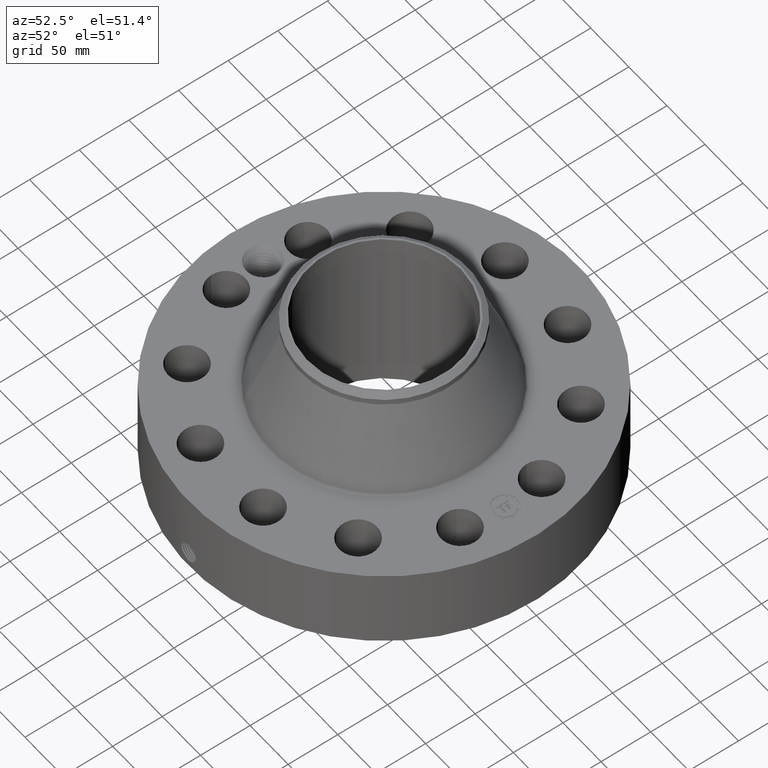
[diagram: clean part render]
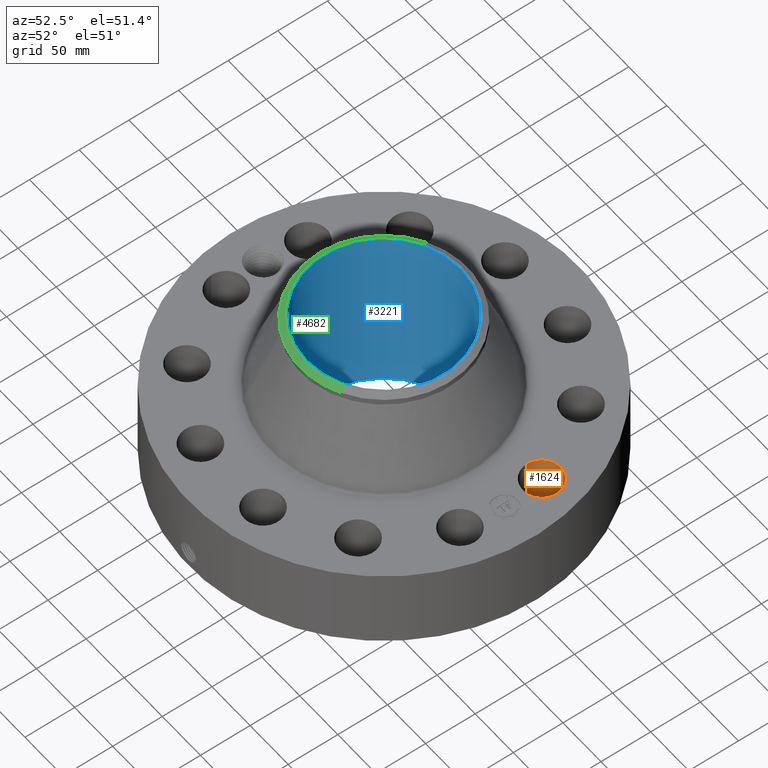
[diagram: same view with three faces highlighted in distinct colors, each labeled with its STEP entity id]
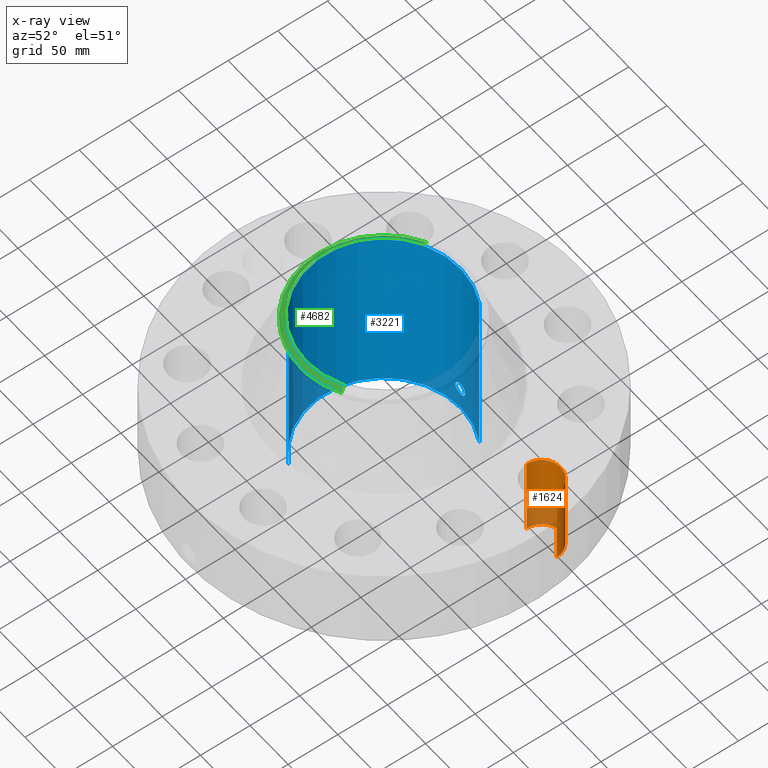
[diagram: x-ray of the same camera — body ghosted, the three highlighted faces saturated]
A machine part, auxiliary view with three faces highlighted in distinct colors.
The next image is the same camera in x-ray (body ghosted, the three faces saturated) — at least one of them is partly hidden behind the body in this view.
Their STEP definitions:

[orange] entity #1624 — the highlighted cylindrical surface (edge-blend (fillet) strip) has radius 19.05 mm, axis along (0, 0, -1).
#451=AXIS2_PLACEMENT_3D('Circle Axis2P3D',#449,#450,$) ;
#849=AXIS2_PLACEMENT_3D('Circle Axis2P3D',#847,#848,$) ;
#1606=AXIS2_PLACEMENT_3D('Cylinder Axis2P3D',#1603,#1604,#1605) ;
#449=CARTESIAN_POINT('Axis2P3D Location',(6.03703641433,1.6176190319,0.250000000001)) ;
#453=CARTESIAN_POINT('Vertex',(5.28724524296,1.59992159293,0.250000000001)) ;
#455=CARTESIAN_POINT('Vertex',(6.7868275857,1.63531647087,0.250000000001)) ;
#842=CARTESIAN_POINT('Vertex',(6.7868275857,1.63531647087,3.50000000001)) ;
#844=CARTESIAN_POINT('Vertex',(5.28724524296,1.59992159293,3.50000000001)) ;
#847=CARTESIAN_POINT('Axis2P3D Location',(6.03703641433,1.6176190319,3.50000000001)) ;
#1603=CARTESIAN_POINT('Axis2P3D Location',(6.03703641433,1.6176190319,3.49606299214)) ;
#1608=CARTESIAN_POINT('Line Origine',(5.28724524296,1.59992159293,1.87500000001)) ;
#1613=CARTESIAN_POINT('Line Origine',(6.7868275857,1.63531647087,1.87500000001)) ;
#450=DIRECTION('Axis2P3D Direction',(0.,0.,-0.0393700787402)) ;
#848=DIRECTION('Axis2P3D Direction',(0.,0.,-0.0393700787402)) ;
#1604=DIRECTION('Axis2P3D Direction',(0.,0.,-0.0393700787402)) ;
#1605=DIRECTION('Axis2P3D XDirection',(0.039359116607,0.000928999420902,0.)) ;
#1609=DIRECTION('Vector Direction',(0.,0.,-0.0393700787402)) ;
#1614=DIRECTION('Vector Direction',(0.,0.,-0.0393700787402)) ;
#1610=VECTOR('Line Direction',#1609,0.0393700787402) ;
#1615=VECTOR('Line Direction',#1614,0.0393700787402) ;
#1619=ORIENTED_EDGE('',*,*,#1612,.F.) ;
#1620=ORIENTED_EDGE('',*,*,#457,.T.) ;
#1621=ORIENTED_EDGE('',*,*,#1617,.T.) ;
#1622=ORIENTED_EDGE('',*,*,#851,.F.) ;
#1624=ADVANCED_FACE('PartBody',(#1623),#1607,.F.) ;
#452=CIRCLE('generated circle',#451,0.750000000003) ;
#850=CIRCLE('generated circle',#849,0.750000000003) ;
#1607=CYLINDRICAL_SURFACE('generated cylinder',#1606,0.750000000003) ;
#457=EDGE_CURVE('',#454,#456,#452,.T.) ;
#851=EDGE_CURVE('',#845,#843,#850,.T.) ;
#1612=EDGE_CURVE('',#454,#845,#1611,.F.) ;
#1617=EDGE_CURVE('',#456,#843,#1616,.F.) ;
#1618=EDGE_LOOP('',(#1619,#1620,#1621,#1622)) ;
#1623=FACE_OUTER_BOUND('',#1618,.T.) ;
#1611=LINE('Line',#1608,#1610) ;
#1616=LINE('Line',#1613,#1615) ;
#454=VERTEX_POINT('',#453) ;
#456=VERTEX_POINT('',#455) ;
#843=VERTEX_POINT('',#842) ;
#845=VERTEX_POINT('',#844) ;

[blue] entity #3221 — the highlighted cylindrical surface (partial cylindrical patch) has radius 77.0255 mm, axis along (0, 0, -1).
#2364=AXIS2_PLACEMENT_3D('Circle Axis2P3D',#2362,#2363,$) ;
#3098=AXIS2_PLACEMENT_3D('Cylinder Axis2P3D',#3095,#3096,#3097) ;
#3170=AXIS2_PLACEMENT_3D('Circle Axis2P3D',#3168,#3169,$) ;
#2357=CARTESIAN_POINT('Vertex',(1.45385794582,2.66126911894,-5.59482469102E-015)) ;
#2359=CARTESIAN_POINT('Vertex',(-1.45385794582,-2.66126911894,-5.59482469102E-015)) ;
#2362=CARTESIAN_POINT('Axis2P3D Location',(0.,0.,0.)) ;
#3095=CARTESIAN_POINT('Axis2P3D Location',(0.,0.,3.50000000001)) ;
#3104=CARTESIAN_POINT('Vertex',(1.45385794582,2.66126911894,7.00000000003)) ;
#3106=CARTESIAN_POINT('Vertex',(-1.45385794582,-2.66126911894,7.00000000003)) ;
#3109=CARTESIAN_POINT('Line Origine',(1.45385794582,2.66126911894,3.50000000001)) ;
#3114=CARTESIAN_POINT('Line Origine',(-1.45385794582,-2.66126911894,3.50000000001)) ;
#3168=CARTESIAN_POINT('Axis2P3D Location',(0.,0.,7.00000000003)) ;
#3180=CARTESIAN_POINT('Control Point',(0.219395640473,3.02455315758,1.05985638466)) ;
#3181=CARTESIAN_POINT('Control Point',(0.206922263263,3.0254579539,1.08268874849)) ;
#3182=CARTESIAN_POINT('Control Point',(0.19148121978,3.02651338018,1.10389387822)) ;
#3183=CARTESIAN_POINT('Control Point',(0.173352909266,3.02763770348,1.12296159325)) ;
#3184=CARTESIAN_POINT('Control Point',(0.112190548393,3.03088722865,1.17241106648)) ;
#3185=CARTESIAN_POINT('Control Point',(0.0350754877691,3.03299839928,1.19595142333)) ;
#3186=CARTESIAN_POINT('Control Point',(-0.0194612464801,3.0331580368,1.19761225249)) ;
#3187=CARTESIAN_POINT('Control Point',(-0.124017328615,3.03084011998,1.17252080762)) ;
#3188=CARTESIAN_POINT('Control Point',(-0.203044538232,3.02603181156,1.09972456466)) ;
#3189=CARTESIAN_POINT('Control Point',(-0.232052740202,3.02365897928,1.05357545794)) ;
#3190=CARTESIAN_POINT('Control Point',(-0.255813742485,3.02169783614,0.975393758157)) ;
#3191=CARTESIAN_POINT('Control Point',(-0.248329979715,3.02231494673,0.895940839296)) ;
#3192=CARTESIAN_POINT('Control Point',(-0.24209507762,3.02283692028,0.869302616476)) ;
#3193=CARTESIAN_POINT('Control Point',(-0.232344480066,3.02361387207,0.843846307238)) ;
#3194=CARTESIAN_POINT('Control Point',(-0.219395640473,3.02455315758,0.820143615352)) ;
#3195=CARTESIAN_POINT('Vertex',(0.219395640473,3.02455315758,1.05985638466)) ;
#3197=CARTESIAN_POINT('Vertex',(-0.219395640473,3.02455315758,0.820143615352)) ;
#3201=CARTESIAN_POINT('Control Point',(-0.219395640473,3.02455315758,0.820143615352)) ;
#3202=CARTESIAN_POINT('Control Point',(-0.206922263263,3.0254579539,0.797311251521)) ;
#3203=CARTESIAN_POINT('Control Point',(-0.19148121978,3.02651338018,0.776106121791)) ;
#3204=CARTESIAN_POINT('Control Point',(-0.173352909266,3.02763770348,0.757038406759)) ;
#3205=CARTESIAN_POINT('Control Point',(-0.112190548393,3.03088722865,0.707588933525)) ;
#3206=CARTESIAN_POINT('Control Point',(-0.0350754877694,3.03299839928,0.684048576678)) ;
#3207=CARTESIAN_POINT('Control Point',(0.0194612464797,3.0331580368,0.682387747519)) ;
#3208=CARTESIAN_POINT('Control Point',(0.124017328649,3.03084011998,0.707479192396)) ;
#3209=CARTESIAN_POINT('Control Point',(0.203044538284,3.02603181156,0.78027543539)) ;
#3210=CARTESIAN_POINT('Control Point',(0.232052740181,3.02365897928,0.826424541999)) ;
#3211=CARTESIAN_POINT('Control Point',(0.255813742484,3.02169783614,0.904606241802)) ;
#3212=CARTESIAN_POINT('Control Point',(0.248329979717,3.02231494673,0.984059160684)) ;
#3213=CARTESIAN_POINT('Control Point',(0.242095077611,3.02283692028,1.01069738356)) ;
#3214=CARTESIAN_POINT('Control Point',(0.23234448006,3.02361387207,1.03615369278)) ;
#3215=CARTESIAN_POINT('Control Point',(0.219395640473,3.02455315758,1.05985638466)) ;
#2363=DIRECTION('Axis2P3D Direction',(0.,0.,-0.0393700787402)) ;
#3096=DIRECTION('Axis2P3D Direction',(0.,0.,-0.0393700787402)) ;
#3097=DIRECTION('Axis2P3D XDirection',(-0.0188750212049,-0.0345504945626,0.)) ;
#3110=DIRECTION('Vector Direction',(0.,0.,-0.0393700787402)) ;
#3115=DIRECTION('Vector Direction',(0.,0.,-0.0393700787402)) ;
#3169=DIRECTION('Axis2P3D Direction',(0.,0.,-0.0393700787402)) ;
#3111=VECTOR('Line Direction',#3110,0.0393700787402) ;
#3116=VECTOR('Line Direction',#3115,0.0393700787402) ;
#3174=ORIENTED_EDGE('',*,*,#3172,.F.) ;
#3175=ORIENTED_EDGE('',*,*,#3118,.T.) ;
#3176=ORIENTED_EDGE('',*,*,#2366,.T.) ;
#3177=ORIENTED_EDGE('',*,*,#3113,.F.) ;
#3218=ORIENTED_EDGE('',*,*,#3199,.F.) ;
#3219=ORIENTED_EDGE('',*,*,#3216,.F.) ;
#3220=FACE_BOUND('',#3217,.T.) ;
#3221=ADVANCED_FACE('PartBody',(#3178,#3220),#3099,.F.) ;
#3179=B_SPLINE_CURVE_WITH_KNOTS('',5,(#3180,#3181,#3182,#3183,#3184,#3185,#3186,#3187,#3188,#3189,#3190,#3191,#3192,#3193,#3194),.UNSPECIFIED.,.F.,.U.,(6,3,3,3,6),(0.,4.67567237913,14.0201641462,23.3700567015,28.2239571814),.UNSPECIFIED.) ;
#3200=B_SPLINE_CURVE_WITH_KNOTS('',5,(#3201,#3202,#3203,#3204,#3205,#3206,#3207,#3208,#3209,#3210,#3211,#3212,#3213,#3214,#3215),.UNSPECIFIED.,.F.,.U.,(6,3,3,3,6),(0.,4.67567237917,14.0201641462,23.3700567078,28.2239571853),.UNSPECIFIED.) ;
#2365=CIRCLE('generated circle',#2364,3.03250000001) ;
#3171=CIRCLE('generated circle',#3170,3.03250000001) ;
#3099=CYLINDRICAL_SURFACE('generated cylinder',#3098,3.03250000001) ;
#2366=EDGE_CURVE('',#2360,#2358,#2365,.T.) ;
#3113=EDGE_CURVE('',#3105,#2358,#3112,.T.) ;
#3118=EDGE_CURVE('',#3107,#2360,#3117,.T.) ;
#3172=EDGE_CURVE('',#3107,#3105,#3171,.T.) ;
#3199=EDGE_CURVE('',#3196,#3198,#3179,.T.) ;
#3216=EDGE_CURVE('',#3198,#3196,#3200,.T.) ;
#3173=EDGE_LOOP('',(#3174,#3175,#3176,#3177)) ;
#3217=EDGE_LOOP('',(#3218,#3219)) ;
#3178=FACE_OUTER_BOUND('',#3173,.T.) ;
#3112=LINE('Line',#3109,#3111) ;
#3117=LINE('Line',#3114,#3116) ;
#2358=VERTEX_POINT('',#2357) ;
#2360=VERTEX_POINT('',#2359) ;
#3105=VERTEX_POINT('',#3104) ;
#3107=VERTEX_POINT('',#3106) ;
#3196=VERTEX_POINT('',#3195) ;
#3198=VERTEX_POINT('',#3197) ;

[green] entity #4682 — the highlighted conical surface has half-angle 52.5 deg.
#3481=AXIS2_PLACEMENT_3D('Circle Axis2P3D',#3479,#3480,$) ;
#3494=AXIS2_PLACEMENT_3D('Circle Axis2P3D',#3492,#3493,$) ;
#4296=AXIS2_PLACEMENT_3D('Circle Axis2P3D',#4294,#4295,$) ;
#4655=AXIS2_PLACEMENT_3D('Cone Axis2P3D',#4652,#4653,#4654) ;
#3462=CARTESIAN_POINT('Vertex',(-1.58929566048,-2.90918619268,6.8436495738)) ;
#3476=CARTESIAN_POINT('Vertex',(1.58929566048,-2.90918619268,6.8436495738)) ;
#3479=CARTESIAN_POINT('Axis2P3D Location',(0.,0.,6.8436495738)) ;
#3492=CARTESIAN_POINT('Axis2P3D Location',(0.,0.,6.8436495738)) ;
#3496=CARTESIAN_POINT('Vertex',(-1.58929566048,2.90918619268,6.8436495738)) ;
#4289=CARTESIAN_POINT('Vertex',(1.49160798823,-2.73037010807,7.00000000003)) ;
#4291=CARTESIAN_POINT('Vertex',(-1.49160798823,2.73037010807,7.00000000003)) ;
#4294=CARTESIAN_POINT('Axis2P3D Location',(0.,0.,7.00000000003)) ;
#4652=CARTESIAN_POINT('Axis2P3D Location',(0.,0.,7.00000000003)) ;
#4657=CARTESIAN_POINT('Line Origine',(-1.54045182436,2.81977815037,6.92182478691)) ;
#4662=CARTESIAN_POINT('Line Origine',(1.54045182436,-2.81977815037,6.92182478691)) ;
#3480=DIRECTION('Axis2P3D Direction',(0.,0.,-0.0393700787402)) ;
#3493=DIRECTION('Axis2P3D Direction',(0.,0.,-0.0393700787402)) ;
#4295=DIRECTION('Axis2P3D Direction',(0.,0.,-0.0393700787402)) ;
#4653=DIRECTION('Axis2P3D Direction',(-0.,-0.,-0.0393700787402)) ;
#4654=DIRECTION('Axis2P3D XDirection',(0.0188750212049,-0.0345504945626,0.)) ;
#4658=DIRECTION('Vector Direction',(-0.014974561121,0.02741075027,-0.023966985394)) ;
#4663=DIRECTION('Vector Direction',(0.014974561121,-0.02741075027,-0.023966985394)) ;
#4659=VECTOR('Line Direction',#4658,0.0393700787402) ;
#4664=VECTOR('Line Direction',#4663,0.0393700787402) ;
#4676=ORIENTED_EDGE('',*,*,#4666,.F.) ;
#4677=ORIENTED_EDGE('',*,*,#4298,.F.) ;
#4678=ORIENTED_EDGE('',*,*,#4661,.T.) ;
#4679=ORIENTED_EDGE('',*,*,#3498,.T.) ;
#4680=ORIENTED_EDGE('',*,*,#3483,.F.) ;
#4682=ADVANCED_FACE('PartBody',(#4681),#4656,.T.) ;
#3482=CIRCLE('generated circle',#3481,3.31500000001) ;
#3495=CIRCLE('generated circle',#3494,3.31500000001) ;
#4297=CIRCLE('generated circle',#4296,3.11124015749) ;
#4656=CONICAL_SURFACE('Cone',#4655,3.11124015749,0.916297857297) ;
#3483=EDGE_CURVE('',#3477,#3463,#3482,.T.) ;
#3498=EDGE_CURVE('',#3497,#3463,#3495,.F.) ;
#4298=EDGE_CURVE('',#4292,#4290,#4297,.F.) ;
#4661=EDGE_CURVE('',#4292,#3497,#4660,.T.) ;
#4666=EDGE_CURVE('',#4290,#3477,#4665,.T.) ;
#4675=EDGE_LOOP('',(#4676,#4677,#4678,#4679,#4680)) ;
#4681=FACE_OUTER_BOUND('',#4675,.T.) ;
#4660=LINE('Line',#4657,#4659) ;
#4665=LINE('Line',#4662,#4664) ;
#3463=VERTEX_POINT('',#3462) ;
#3477=VERTEX_POINT('',#3476) ;
#3497=VERTEX_POINT('',#3496) ;
#4290=VERTEX_POINT('',#4289) ;
#4292=VERTEX_POINT('',#4291) ;